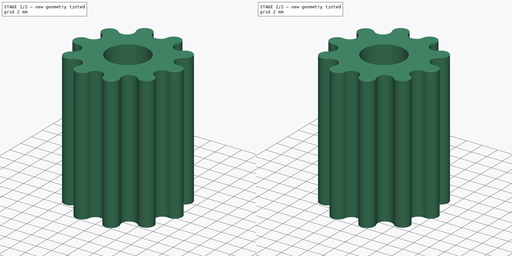
[diagram: build sequence overview — one tinted view per stage of 2, left to right]
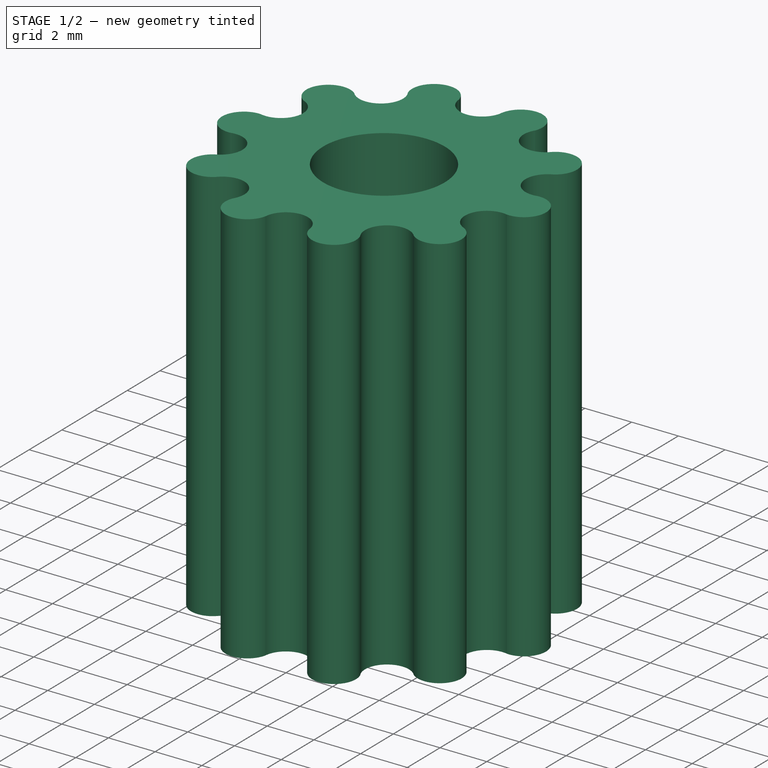
[diagram: stage 1 of 2 — iso view after this stage's code; geometry added in this stage tinted green]
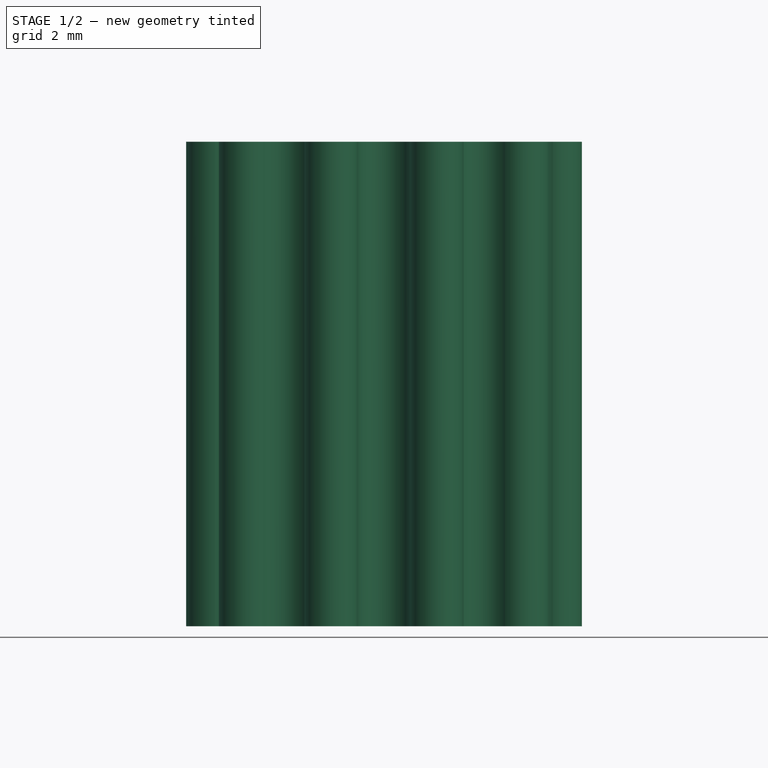
[diagram: stage 1 of 2 — front view after this stage's code; geometry added in this stage tinted green]
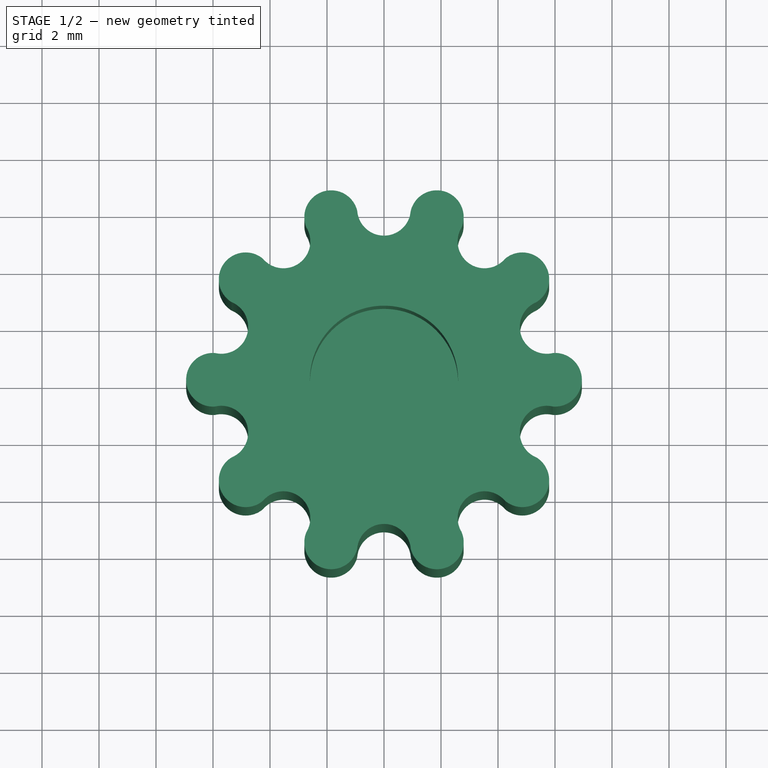
[diagram: stage 1 of 2 — top view after this stage's code; geometry added in this stage tinted green]
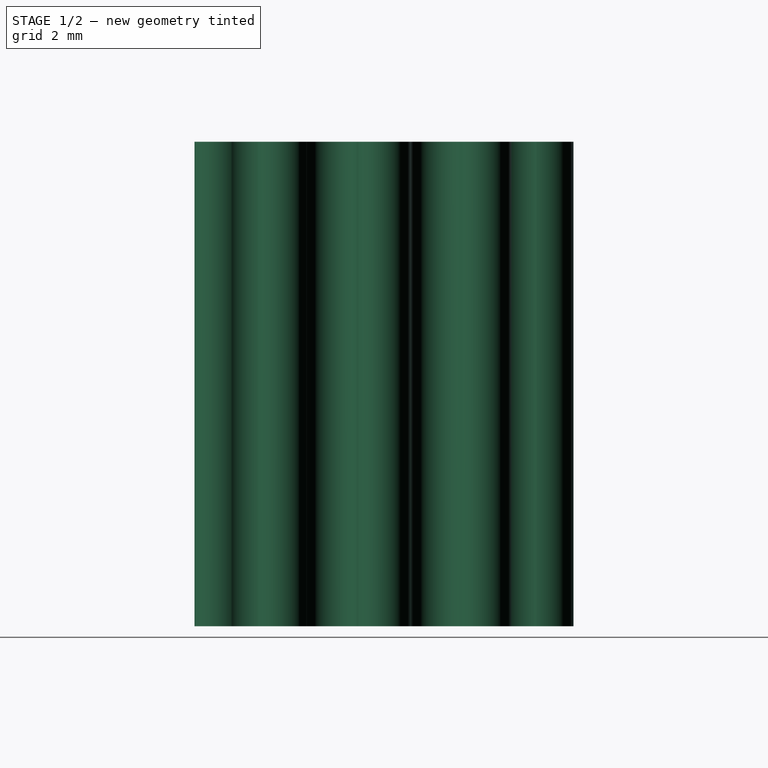
[diagram: stage 1 of 2 — right view after this stage's code; geometry added in this stage tinted green]
FCSTD DOCUMENT  (FreeCAD 0.21R33771 (Git))
Label: SFT-Mk5-Thumbwheel
License: Public Domain
LicenseURL: https://en.wikipedia.org/wiki/Public_domain
objects: Sketcher::SketchObject×2, Part::Extrusion×2, PartDesign::CoordinateSystem×1, Part::Cut×1, App::Part×1
note: 6 computed .brp shape members not serialized (recipe doc carries the construction recipe); baked Part::Feature solids carry a one-line shape summary decoded from their .brp

FEATURE [PartDesign::CoordinateSystem] LCS_Origin  label="Shaft AP"
  AttacherType = Attacher::AttachEngine3D
  MapMode = 2
  Support = -> [X_Axis]
FEATURE [Sketcher::SketchObject] Sketch  label="Thumbwheel Pad Sketch"
  FullyConstrained = true
  MapMode = 5
  Support = -> [XY_Plane]
  sketch-geometry (22):
    g0: Circle CenterX=0 CenterY=0 CenterZ=0 NormalX=0 NormalY=0 NormalZ=1 AngleXU=0 Radius=2.6
    g1: Circle CenterX=0 CenterY=0 CenterZ=0 NormalX=0 NormalY=0 NormalZ=1 AngleXU=0 Radius=6
    g2: ArcOfCircle CenterX=0 CenterY=6 CenterZ=0 NormalX=0 NormalY=0 NormalZ=1 AngleXU=0 Radius=0.941509 StartAngle=3.22013 EndAngle=6.04757
    g3: ArcOfCircle CenterX=-1.8541 CenterY=5.70634 CenterZ=0 NormalX=0 NormalY=0 NormalZ=1 AngleXU=0 Radius=0.941509 StartAngle=0.235619 EndAngle=3.53429
    g4: ArcOfCircle CenterX=-3.52671 CenterY=4.8541 CenterZ=0 NormalX=0 NormalY=0 NormalZ=1 AngleXU=0 Radius=0.941509 StartAngle=3.84845 EndAngle=6.83296
    g5: ArcOfCircle CenterX=-4.8541 CenterY=3.52671 CenterZ=0 NormalX=0 NormalY=0 NormalZ=1 AngleXU=0 Radius=0.941509 StartAngle=0.863938 EndAngle=4.16261
    g6: ArcOfCircle CenterX=-5.70634 CenterY=1.8541 CenterZ=0 NormalX=0 NormalY=0 NormalZ=1 AngleXU=0 Radius=0.941509 StartAngle=4.47677 EndAngle=7.46128
    g7: ArcOfCircle CenterX=-6 CenterY=-4.29e-14 CenterZ=0 NormalX=0 NormalY=0 NormalZ=1 AngleXU=0 Radius=0.941509 StartAngle=1.49226 EndAngle=4.79093
    g8: ArcOfCircle CenterX=-5.70634 CenterY=-1.8541 CenterZ=0 NormalX=0 NormalY=0 NormalZ=1 AngleXU=0 Radius=0.941509 StartAngle=5.10509 EndAngle=8.0896
    g9: ArcOfCircle CenterX=-4.8541 CenterY=-3.52671 CenterZ=0 NormalX=0 NormalY=0 NormalZ=1 AngleXU=0 Radius=0.941509 StartAngle=2.12058 EndAngle=5.41925
    g10: ArcOfCircle CenterX=-3.52671 CenterY=-4.8541 CenterZ=0 NormalX=0 NormalY=0 NormalZ=1 AngleXU=0 Radius=0.941509 StartAngle=5.73341 EndAngle=8.71792
    g11: ArcOfCircle CenterX=-1.8541 CenterY=-5.70634 CenterZ=0 NormalX=0 NormalY=0 NormalZ=1 AngleXU=0 Radius=0.941509 StartAngle=2.74889 EndAngle=6.04757
    g12: ArcOfCircle CenterX=1.8541 CenterY=5.70634 CenterZ=0 NormalX=0 NormalY=0 NormalZ=1 AngleXU=0 Radius=0.941509 StartAngle=5.89049 EndAngle=9.34624
    g13: ArcOfCircle CenterX=3.52671 CenterY=4.8541 CenterZ=0 NormalX=0 NormalY=0 NormalZ=1 AngleXU=0 Radius=0.941509 StartAngle=2.59181 EndAngle=5.57633
    g14: ArcOfCircle CenterX=4.8541 CenterY=3.52671 CenterZ=0 NormalX=0 NormalY=0 NormalZ=1 AngleXU=0 Radius=0.941509 StartAngle=5.26217 EndAngle=8.56084
    g15: ArcOfCircle CenterX=5.70634 CenterY=1.8541 CenterZ=0 NormalX=0 NormalY=0 NormalZ=1 AngleXU=0 Radius=0.941509 StartAngle=1.9635 EndAngle=4.94801
    g16: ArcOfCircle CenterX=6 CenterY=0 CenterZ=0 NormalX=0 NormalY=0 NormalZ=1 AngleXU=0 Radius=0.941509 StartAngle=4.63385 EndAngle=7.93252
    g17: ArcOfCircle CenterX=5.70634 CenterY=-1.8541 CenterZ=0 NormalX=0 NormalY=0 NormalZ=1 AngleXU=0 Radius=0.941509 StartAngle=1.33518 EndAngle=4.31969
    g18: ArcOfCircle CenterX=4.8541 CenterY=-3.52671 CenterZ=0 NormalX=0 NormalY=0 NormalZ=1 AngleXU=0 Radius=0.941509 StartAngle=4.00553 EndAngle=7.3042
    g19: ArcOfCircle CenterX=3.52671 CenterY=-4.8541 CenterZ=0 NormalX=0 NormalY=0 NormalZ=1 AngleXU=0 Radius=0.941509 StartAngle=0.706858 EndAngle=3.69137
    g20: ArcOfCircle CenterX=1.8541 CenterY=-5.70634 CenterZ=0 NormalX=0 NormalY=0 NormalZ=1 AngleXU=0 Radius=0.941509 StartAngle=3.37721 EndAngle=6.67588
    g21: ArcOfCircle CenterX=2.09e-14 CenterY=-6 CenterZ=0 NormalX=0 NormalY=0 NormalZ=1 AngleXU=0 Radius=0.941509 StartAngle=0.0785398 EndAngle=3.06305
  constraints (84):
    c: Coincident(g0,g-1)
    c: Radius(g0) = 2.6
    c: Coincident(g1,g0)
    c: Radius(g1) = 6
    c: PointOnObject(g2,g-2)
    c: PointOnObject(g2,g1)
    c: PointOnObject(g3,g1)
    c: Coincident(g3,g2)
    c: PointOnObject(g3,g1)
    c: PointOnObject(g4,g1)
    c: Coincident(g4,g3)
    c: PointOnObject(g4,g1)
    c: PointOnObject(g5,g1)
    c: Coincident(g5,g4)
    c: PointOnObject(g5,g1)
    c: PointOnObject(g6,g1)
    c: Coincident(g6,g5)
    c: PointOnObject(g6,g1)
    c: PointOnObject(g7,g1)
    c: Coincident(g7,g6)
    c: PointOnObject(g7,g1)
    c: PointOnObject(g8,g1)
    c: Coincident(g8,g7)
    c: PointOnObject(g8,g1)
    c: PointOnObject(g9,g1)
    c: Coincident(g9,g8)
    c: PointOnObject(g9,g1)
    c: PointOnObject(g10,g1)
    c: Coincident(g10,g9)
    c: PointOnObject(g10,g1)
    c: PointOnObject(g11,g1)
    c: Coincident(g11,g10)
    c: PointOnObject(g11,g1)
    c: PointOnObject(g12,g1)
    c: Coincident(g12,g2)
    c: PointOnObject(g12,g1)
    c: PointOnObject(g13,g1)
    c: Coincident(g13,g12)
    c: PointOnObject(g13,g1)
    c: PointOnObject(g14,g1)
    c: Coincident(g14,g13)
    c: PointOnObject(g14,g1)
    c: PointOnObject(g15,g1)
    c: Coincident(g15,g14)
    c: PointOnObject(g15,g1)
    c: PointOnObject(g16,g1)
    c: Coincident(g16,g15)
    c: PointOnObject(g16,g1)
    c: PointOnObject(g17,g1)
    c: Coincident(g17,g16)
    c: PointOnObject(g17,g1)
    c: PointOnObject(g18,g1)
    c: Coincident(g18,g17)
    c: PointOnObject(g18,g1)
    c: PointOnObject(g19,g1)
    c: Coincident(g19,g18)
    c: PointOnObject(g19,g1)
    c: PointOnObject(g20,g1)
    c: PointOnObject(g20,g1)
    c: PointOnObject(g21,g1)
    c: Coincident(g21,g11)
    c: Coincident(g21,g20)
    c: Equal(g2,g12)
    c: Equal(g12,g13)
    c: Equal(g13,g14)
    c: Equal(g14,g15)
    c: Equal(g15,g16)
    c: Equal(g16,g17)
    c: Equal(g17,g18)
    c: Equal(g18,g3)
    c: Equal(g3,g4)
    c: Equal(g4,g5)
    c: Equal(g5,g6)
    c: Equal(g6,g7)
    c: Equal(g7,g8)
    c: Equal(g8,g9)
    c: Equal(g9,g10)
    c: Equal(g10,g11)
    c: Equal(g11,g21)
    c: Equal(g21,g20)
    c: Equal(g20,g19)
    c: Coincident(g20,g19)
    c: PointOnObject(g16,g-1)
    c: PointOnObject(g2,g1)
FEATURE [Part::Extrusion] Extrude  label="Thumbwheel Pad"
  Base = -> Sketch
  Dir = (0,0,1)
  DirMode = 2
  FaceMakerClass = Part::FaceMakerBullseye
  LengthFwd = 17
  LengthRev = 0
  Solid = true
  Symmetric = true
FEATURE [Sketcher::SketchObject] Sketch001  label="Nut Pocket Sketch"
  FullyConstrained = true
  MapMode = 5
  Support = -> [XY_Plane]
  sketch-geometry (6):
    g0: LineSegment StartX=-4.835 StartY=0 StartZ=0 EndX=-2.4 EndY=-4.2 EndZ=0
    g1: LineSegment StartX=-2.4 StartY=-4.2 StartZ=0 EndX=2.4 EndY=-4.2 EndZ=0
    g2: LineSegment StartX=2.4 StartY=-4.2 StartZ=0 EndX=4.835 EndY=0 EndZ=0
    g3: LineSegment StartX=4.835 StartY=0 StartZ=0 EndX=2.4 EndY=4.2 EndZ=0
    g4: LineSegment StartX=2.4 StartY=4.2 StartZ=0 EndX=-2.4 EndY=4.2 EndZ=0
    g5: LineSegment StartX=-2.4 StartY=4.2 StartZ=0 EndX=-4.835 EndY=0 EndZ=0
  constraints (14):
    c: Coincident(g0,g1)
    c: Coincident(g1,g2)
    c: PointOnObject(g2,g-1)
    c: Coincident(g2,g3)
    c: Coincident(g5,g0)
    c: DistanceY(g1) = -4.2
    c: DistanceX(g1) = 2.4
    c: Symmetric(g1,g0,g-2)
    c: Symmetric(g1,g4,g-1)
    c: Coincident(g3,g4)
    c: Coincident(g5,g4)
    c: Symmetric(g4,g0,g-1)
    c: Symmetric(g2,g0,g-1)
    c: DistanceX(g0,g2) = 9.67
FEATURE [Part::Extrusion] Extrude001  label="Nut Pocket"
  Base = -> Sketch001
  Dir = (0,0,1)
  DirMode = 2
  FaceMakerClass = Part::FaceMakerBullseye
  LengthFwd = 4
  LengthRev = 0
  Solid = true
  Symmetric = true
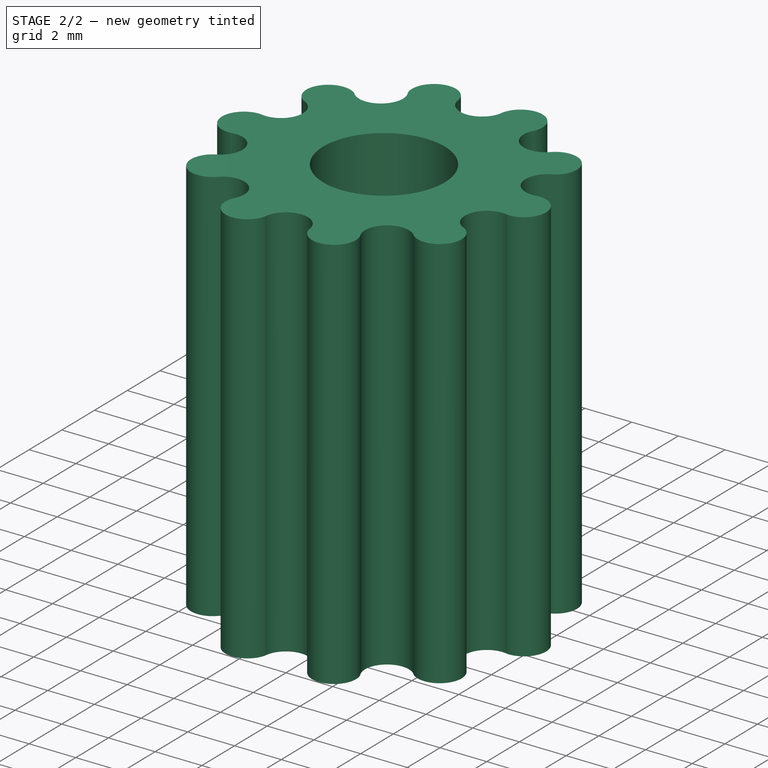
[diagram: stage 2 of 2 — iso view after this stage's code; geometry added in this stage tinted green]
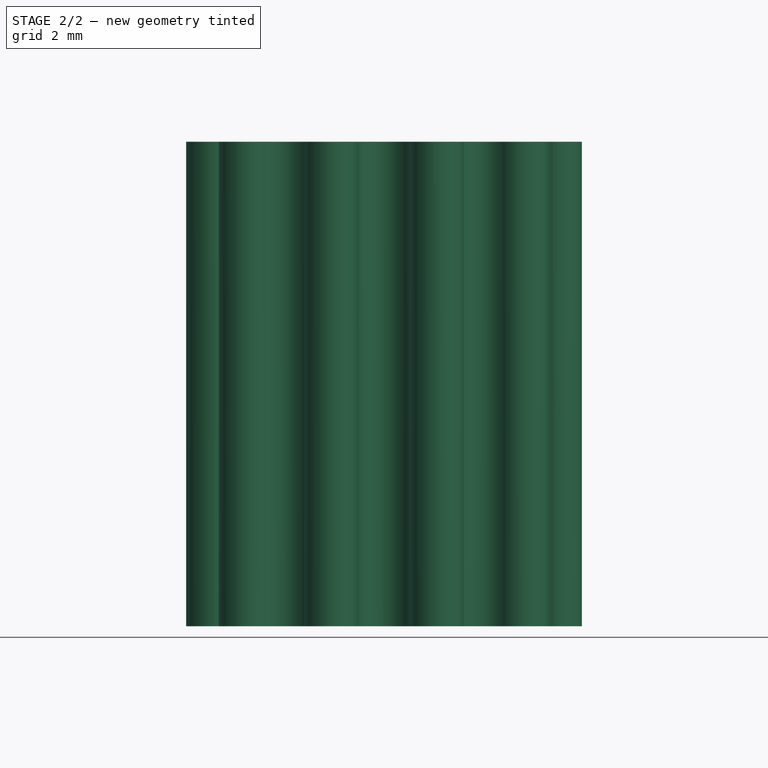
[diagram: stage 2 of 2 — front view after this stage's code; geometry added in this stage tinted green]
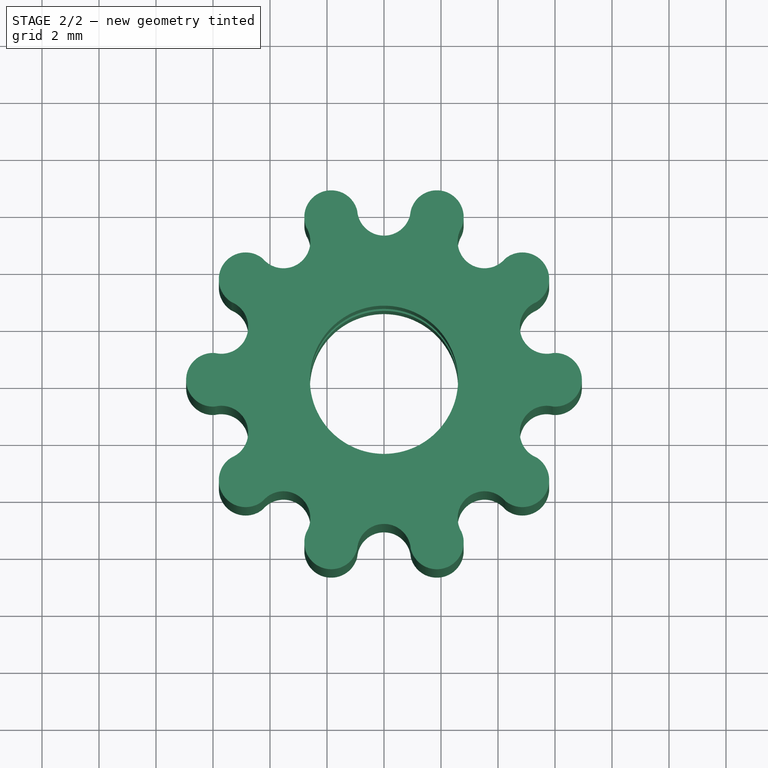
[diagram: stage 2 of 2 — top view after this stage's code; geometry added in this stage tinted green]
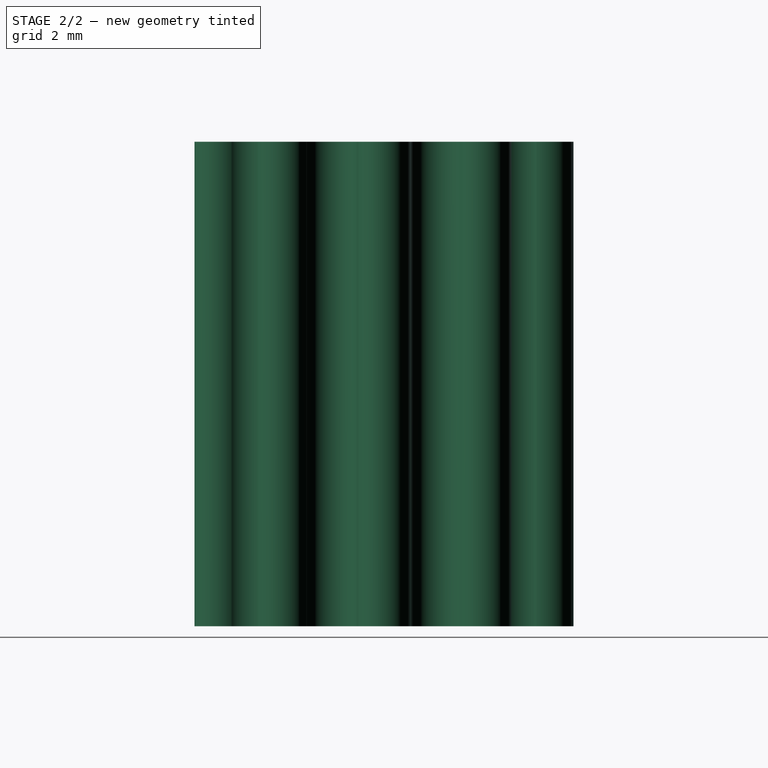
[diagram: stage 2 of 2 — right view after this stage's code; geometry added in this stage tinted green]
FEATURE [Part::Cut] Cut
  Base = -> Extrude
  Tool = -> Extrude001
FEATURE [App::Part] Thumbwheel
  Group = -> [LCS_Origin,Sketch,Sketch001,Extrude001,Extrude,Cut]
  Origin = -> Origin
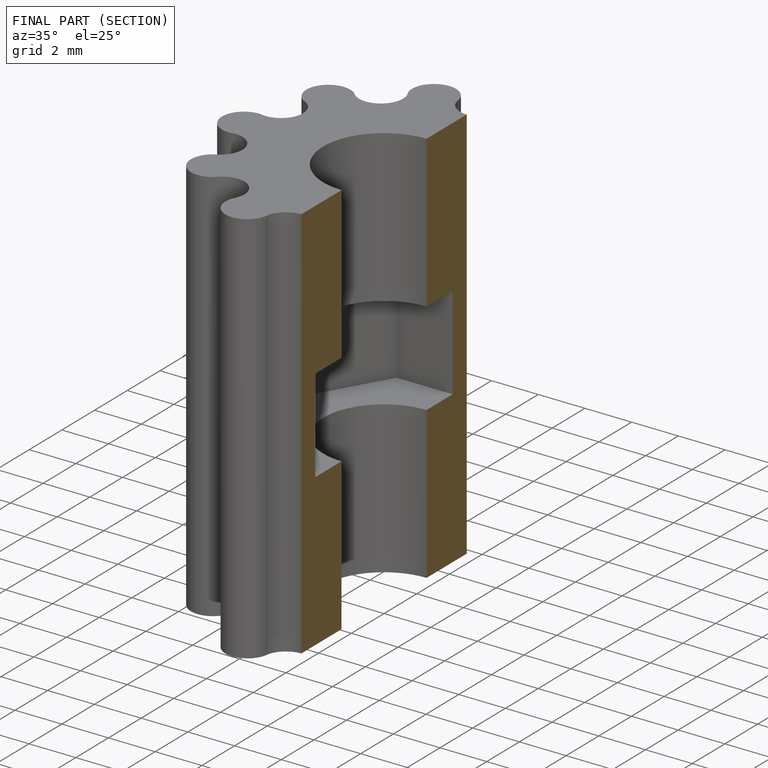
[diagram: finished part — half-section view (interior)]
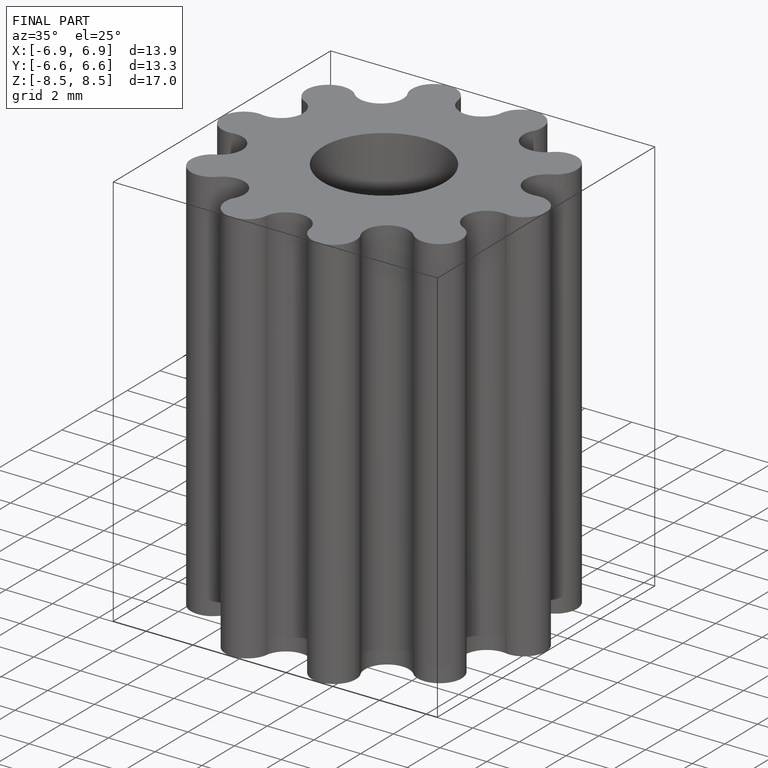
[diagram: finished part — iso view with bounding-box wireframe]
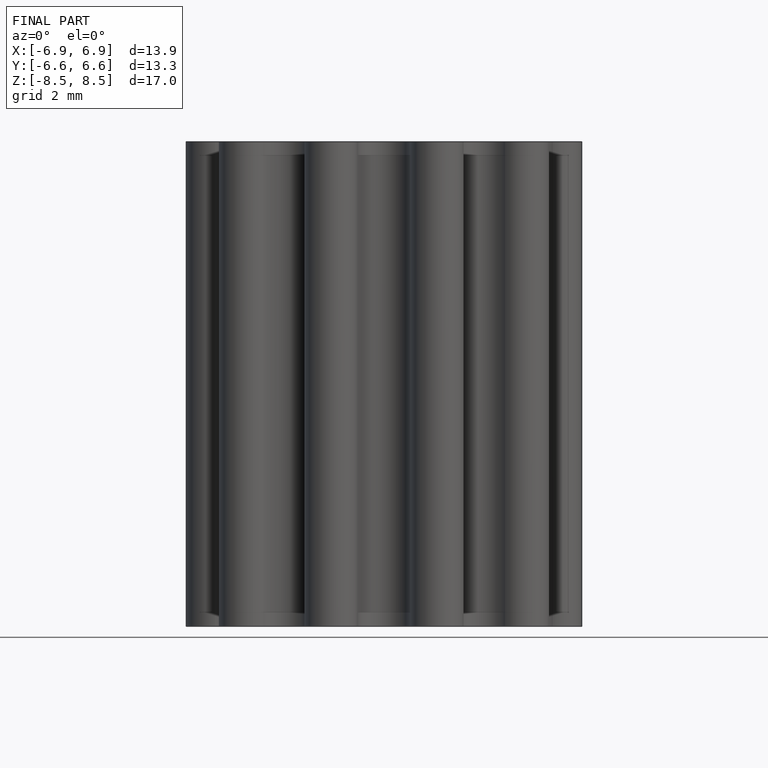
[diagram: finished part — front view with bounding-box wireframe]
